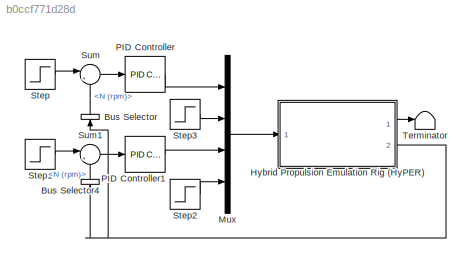
MODEL slx_b0ccf771d28d
KIND model
CONFIG AbsTol = auto
CONFIG EnableMultiTasking = off
CONFIG FixedStep = 0.02
CONFIG MaxStep = auto
CONFIG MinStep = auto
CONFIG RelTol = 1e-3
CONFIG SampleTimeConstraint = Unconstrained
CONFIG SolverName = FixedStepAuto
CONFIG StartTime = 0.0
CONFIG StopTime = 20
BLOCK [BusSelector] Bus Selector
  NameLocation = right
  OutputSignals = S_LS.N (rpm)
  Ports = [1, 1]
BLOCK [BusSelector] Bus Selector4
  NameLocation = right
  OutputSignals = S_HS.N (rpm)
  Ports = [1, 1]
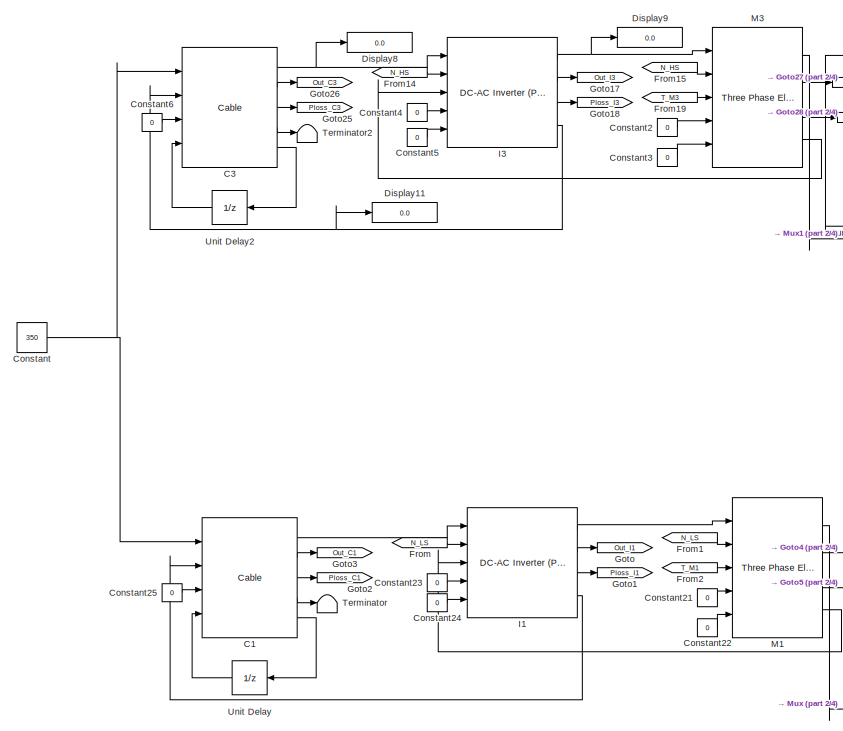
[diagram: Hybrid Propulsion Emulation Rig (HyPER) - part 1/4, middle left region]
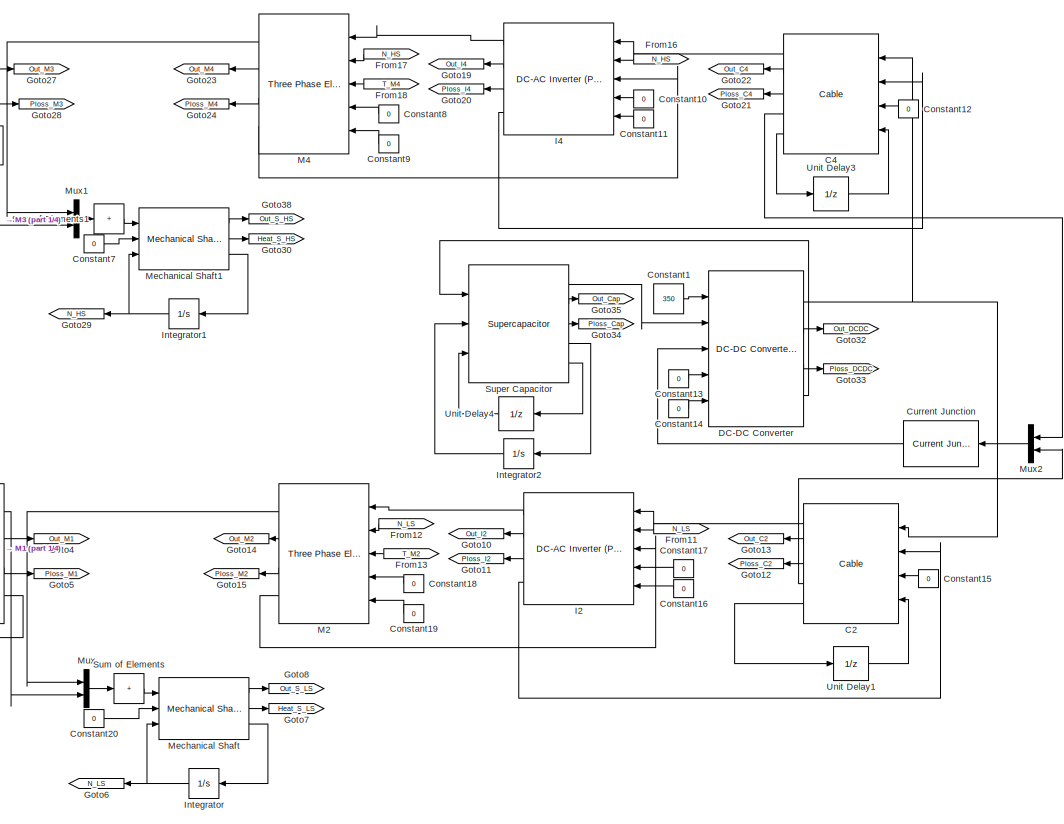
[diagram: Hybrid Propulsion Emulation Rig (HyPER) - part 2/4, central region]
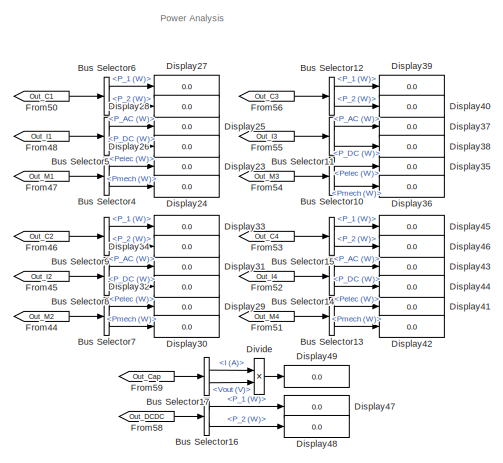
[diagram: Hybrid Propulsion Emulation Rig (HyPER) - part 3/4, middle right region]
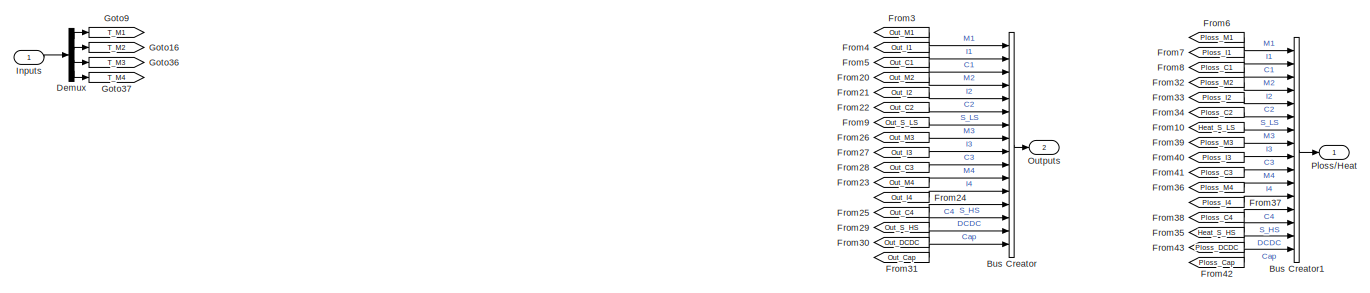
[diagram: Hybrid Propulsion Emulation Rig (HyPER) - part 4/4, bottom center region]
BLOCK [SubSystem] Hybrid Propulsion Emulation Rig (HyPER)
  Ports = [1, 2]
  RequestExecContextInheritance = off
BLOCK [BusCreator] Hybrid Propulsion Emulation Rig (HyPER)/Bus Creator
  DisplayOption = bar
  InheritFromInputs = on
  Inputs = 16
  Ports = [16, 1]
BLOCK [BusCreator] Hybrid Propulsion Emulation Rig (HyPER)/Bus Creator1
  DisplayOption = bar
  InheritFromInputs = on
  Inputs = 16
  Ports = [16, 1]
BLOCK [BusSelector] Hybrid Propulsion Emulation Rig (HyPER)/Bus Selector10
  OutputSignals = Pelec (W),Pmech (W)
  Ports = [1, 2]
BLOCK [BusSelector] Hybrid Propulsion Emulation Rig (HyPER)/Bus Selector11
  OutputSignals = P_AC (W),P_DC (W)
  Ports = [1, 2]
BLOCK [BusSelector] Hybrid Propulsion Emulation Rig (HyPER)/Bus Selector12
  OutputSignals = P_1 (W),P_2 (W)
  Ports = [1, 2]
BLOCK [BusSelector] Hybrid Propulsion Emulation Rig (HyPER)/Bus Selector13
  OutputSignals = Pelec (W),Pmech (W)
  Ports = [1, 2]
BLOCK [BusSelector] Hybrid Propulsion Emulation Rig (HyPER)/Bus Selector14
  OutputSignals = P_AC (W),P_DC (W)
  Ports = [1, 2]
BLOCK [BusSelector] Hybrid Propulsion Emulation Rig (HyPER)/Bus Selector15
  OutputSignals = P_1 (W),P_2 (W)
  Ports = [1, 2]
BLOCK [BusSelector] Hybrid Propulsion Emulation Rig (HyPER)/Bus Selector16
  OutputSignals = P_1 (W),P_2 (W)
  Ports = [1, 2]
BLOCK [BusSelector] Hybrid Propulsion Emulation Rig (HyPER)/Bus Selector17
  OutputSignals = I (A),Vout (V)
  Ports = [1, 2]
BLOCK [BusSelector] Hybrid Propulsion Emulation Rig (HyPER)/Bus Selector4
  OutputSignals = Pelec (W),Pmech (W)
  Ports = [1, 2]
BLOCK [BusSelector] Hybrid Propulsion Emulation Rig (HyPER)/Bus Selector5
  OutputSignals = P_AC (W),P_DC (W)
  Ports = [1, 2]
BLOCK [BusSelector] Hybrid Propulsion Emulation Rig (HyPER)/Bus Selector6
  OutputSignals = P_1 (W),P_2 (W)
  Ports = [1, 2]
BLOCK [BusSelector] Hybrid Propulsion Emulation Rig (HyPER)/Bus Selector7
  OutputSignals = Pelec (W),Pmech (W)
  Ports = [1, 2]
BLOCK [BusSelector] Hybrid Propulsion Emulation Rig (HyPER)/Bus Selector8
  OutputSignals = P_AC (W),P_DC (W)
  Ports = [1, 2]
BLOCK [BusSelector] Hybrid Propulsion Emulation Rig (HyPER)/Bus Selector9
  OutputSignals = P_1 (W),P_2 (W)
  Ports = [1, 2]
BLOCK [Reference] Hybrid Propulsion Emulation Rig (HyPER)/C1  REF=Lib_EMTAT/Components/Power Flow/Cable
  AttributesFormatString = Cable\nVersion: %<LibraryVersion>
  Ports = [4, 5]
  SourceBlock = Lib_EMTAT/Components/Power Flow/Cable
  SourceProductName = EMTAT
  SourceType = Cable
BLOCK [Reference] Hybrid Propulsion Emulation Rig (HyPER)/C2  REF=Lib_EMTAT/Components/Power Flow/Cable
  AttributesFormatString = Cable\nVersion: %<LibraryVersion>
  Ports = [4, 5]
  SourceBlock = Lib_EMTAT/Components/Power Flow/Cable
  SourceProductName = EMTAT
  SourceType = Cable
BLOCK [Reference] Hybrid Propulsion Emulation Rig (HyPER)/C3  REF=Lib_EMTAT/Components/Power Flow/Cable
  AttributesFormatString = Cable\nVersion: %<LibraryVersion>
  Ports = [4, 5]
  SourceBlock = Lib_EMTAT/Components/Power Flow/Cable
  SourceProductName = EMTAT
  SourceType = Cable
BLOCK [Reference] Hybrid Propulsion Emulation Rig (HyPER)/C4  REF=Lib_EMTAT/Components/Power Flow/Cable
  AttributesFormatString = Cable\nVersion: %<LibraryVersion>
  Ports = [4, 5]
  SourceBlock = Lib_EMTAT/Components/Power Flow/Cable
  SourceProductName = EMTAT
  SourceType = Cable
BLOCK [Constant] Hybrid Propulsion Emulation Rig (HyPER)/Constant
  Value = 350
BLOCK [Constant] Hybrid Propulsion Emulation Rig (HyPER)/Constant1
  Value = 350
BLOCK [Constant] Hybrid Propulsion Emulation Rig (HyPER)/Constant10
  Value = 0
BLOCK [Constant] Hybrid Propulsion Emulation Rig (HyPER)/Constant11
  Value = 0
BLOCK [Constant] Hybrid Propulsion Emulation Rig (HyPER)/Constant12
  Value = 0
BLOCK [Constant] Hybrid Propulsion Emulation Rig (HyPER)/Constant13
  Value = 0
BLOCK [Constant] Hybrid Propulsion Emulation Rig (HyPER)/Constant14
  Value = 0
BLOCK [Constant] Hybrid Propulsion Emulation Rig (HyPER)/Constant15
  Value = 0
BLOCK [Constant] Hybrid Propulsion Emulation Rig (HyPER)/Constant16
  Value = 0
BLOCK [Constant] Hybrid Propulsion Emulation Rig (HyPER)/Constant17
  Value = 0
BLOCK [Constant] Hybrid Propulsion Emulation Rig (HyPER)/Constant18
  Value = 0
BLOCK [Constant] Hybrid Propulsion Emulation Rig (HyPER)/Constant19
  Value = 0
BLOCK [Constant] Hybrid Propulsion Emulation Rig (HyPER)/Constant2
  Value = 0
BLOCK [Constant] Hybrid Propulsion Emulation Rig (HyPER)/Constant20
  Value = 0
BLOCK [Constant] Hybrid Propulsion Emulation Rig (HyPER)/Constant21
  Value = 0
BLOCK [Constant] Hybrid Propulsion Emulation Rig (HyPER)/Constant22
  Value = 0
BLOCK [Constant] Hybrid Propulsion Emulation Rig (HyPER)/Constant23
  Value = 0
BLOCK [Constant] Hybrid Propulsion Emulation Rig (HyPER)/Constant24
  Value = 0
BLOCK [Constant] Hybrid Propulsion Emulation Rig (HyPER)/Constant25
  Value = 0
BLOCK [Constant] Hybrid Propulsion Emulation Rig (HyPER)/Constant3
  Value = 0
BLOCK [Constant] Hybrid Propulsion Emulation Rig (HyPER)/Constant4
  Value = 0
BLOCK [Constant] Hybrid Propulsion Emulation Rig (HyPER)/Constant5
  Value = 0
BLOCK [Constant] Hybrid Propulsion Emulation Rig (HyPER)/Constant6
  Value = 0
BLOCK [Constant] Hybrid Propulsion Emulation Rig (HyPER)/Constant7
  Value = 0
BLOCK [Constant] Hybrid Propulsion Emulation Rig (HyPER)/Constant8
  Value = 0
BLOCK [Constant] Hybrid Propulsion Emulation Rig (HyPER)/Constant9
  Value = 0
BLOCK [Reference] Hybrid Propulsion Emulation Rig (HyPER)/Current Junction  REF=Lib_EMTAT/Components/Power Flow/Current Junction
  AttributesFormatString = Current Junction\nVersion: %<LibraryVersion>
  Ports = [1, 1]
  SourceBlock = Lib_EMTAT/Components/Power Flow/Current Junction
  SourceProductName = EMTAT
  SourceType = Current Junction
BLOCK [Reference] Hybrid Propulsion Emulation Rig (HyPER)/DC-DC Converter  REF=Lib_EMTAT/Components/Power Flow/DC-DC Converter
(Power Loss Map)
(Set Output Voltage)
  AttributesFormatString = DC-DC Converter\nVersion: %<LibraryVersion>
  Ports = [5, 4]
  SourceBlock = Lib_EMTAT/Components/Power Flow/DC-DC Converter\n(Power Loss Map)\n(Set Output Voltage)
  SourceProductName = EMTAT
  SourceType = DC-DC Converter (Power Loss Map) (Set Output Voltage)
BLOCK [Demux] Hybrid Propulsion Emulation Rig (HyPER)/Demux
  Ports = [1, 4]
BLOCK [Display] Hybrid Propulsion Emulation Rig (HyPER)/Display11
  Decimation = 1
  Ports = [1]
BLOCK [Display] Hybrid Propulsion Emulation Rig (HyPER)/Display23
  Decimation = 1
  Ports = [1]
BLOCK [Display] Hybrid Propulsion Emulation Rig (HyPER)/Display24
  Decimation = 1
  Ports = [1]
BLOCK [Display] Hybrid Propulsion Emulation Rig (HyPER)/Display25
  Decimation = 1
  Ports = [1]
BLOCK [Display] Hybrid Propulsion Emulation Rig (HyPER)/Display26
  Decimation = 1
  Ports = [1]
BLOCK [Display] Hybrid Propulsion Emulation Rig (HyPER)/Display27
  Decimation = 1
  Ports = [1]
BLOCK [Display] Hybrid Propulsion Emulation Rig (HyPER)/Display28
  Decimation = 1
  Ports = [1]
BLOCK [Display] Hybrid Propulsion Emulation Rig (HyPER)/Display29
  Decimation = 1
  Ports = [1]
BLOCK [Display] Hybrid Propulsion Emulation Rig (HyPER)/Display30
  Decimation = 1
  Ports = [1]
BLOCK [Display] Hybrid Propulsion Emulation Rig (HyPER)/Display31
  Decimation = 1
  Ports = [1]
BLOCK [Display] Hybrid Propulsion Emulation Rig (HyPER)/Display32
  Decimation = 1
  Ports = [1]
BLOCK [Display] Hybrid Propulsion Emulation Rig (HyPER)/Display33
  Decimation = 1
  Ports = [1]
BLOCK [Display] Hybrid Propulsion Emulation Rig (HyPER)/Display34
  Decimation = 1
  Ports = [1]
BLOCK [Display] Hybrid Propulsion Emulation Rig (HyPER)/Display35
  Decimation = 1
  Ports = [1]
BLOCK [Display] Hybrid Propulsion Emulation Rig (HyPER)/Display36
  Decimation = 1
  Ports = [1]
BLOCK [Display] Hybrid Propulsion Emulation Rig (HyPER)/Display37
  Decimation = 1
  Ports = [1]
BLOCK [Display] Hybrid Propulsion Emulation Rig (HyPER)/Display38
  Decimation = 1
  Ports = [1]
BLOCK [Display] Hybrid Propulsion Emulation Rig (HyPER)/Display39
  Decimation = 1
  Ports = [1]
BLOCK [Display] Hybrid Propulsion Emulation Rig (HyPER)/Display40
  Decimation = 1
  Ports = [1]
BLOCK [Display] Hybrid Propulsion Emulation Rig (HyPER)/Display41
  Decimation = 1
  Ports = [1]
BLOCK [Display] Hybrid Propulsion Emulation Rig (HyPER)/Display42
  Decimation = 1
  Ports = [1]
BLOCK [Display] Hybrid Propulsion Emulation Rig (HyPER)/Display43
  Decimation = 1
  Ports = [1]
BLOCK [Display] Hybrid Propulsion Emulation Rig (HyPER)/Display44
  Decimation = 1
  Ports = [1]
BLOCK [Display] Hybrid Propulsion Emulation Rig (HyPER)/Display45
  Decimation = 1
  Ports = [1]
BLOCK [Display] Hybrid Propulsion Emulation Rig (HyPER)/Display46
  Decimation = 1
  Ports = [1]
BLOCK [Display] Hybrid Propulsion Emulation Rig (HyPER)/Display47
  Decimation = 1
  Ports = [1]
BLOCK [Display] Hybrid Propulsion Emulation Rig (HyPER)/Display48
  Decimation = 1
  Ports = [1]
BLOCK [Display] Hybrid Propulsion Emulation Rig (HyPER)/Display49
  Decimation = 1
  Ports = [1]
BLOCK [Display] Hybrid Propulsion Emulation Rig (HyPER)/Display8
  Decimation = 1
  Ports = [1]
BLOCK [Display] Hybrid Propulsion Emulation Rig (HyPER)/Display9
  Decimation = 1
  Ports = [1]
BLOCK [Product] Hybrid Propulsion Emulation Rig (HyPER)/Divide
  Inputs = **
  Ports = [2, 1]
BLOCK [From] Hybrid Propulsion Emulation Rig (HyPER)/From
  GotoTag = N_LS
BLOCK [From] Hybrid Propulsion Emulation Rig (HyPER)/From1
  GotoTag = N_LS
BLOCK [From] Hybrid Propulsion Emulation Rig (HyPER)/From10
  GotoTag = Heat_S_LS
BLOCK [From] Hybrid Propulsion Emulation Rig (HyPER)/From11
  GotoTag = N_LS
BLOCK [From] Hybrid Propulsion Emulation Rig (HyPER)/From12
  GotoTag = N_LS
BLOCK [From] Hybrid Propulsion Emulation Rig (HyPER)/From13
  GotoTag = T_M2
BLOCK [From] Hybrid Propulsion Emulation Rig (HyPER)/From14
  GotoTag = N_HS
BLOCK [From] Hybrid Propulsion Emulation Rig (HyPER)/From15
  GotoTag = N_HS
BLOCK [From] Hybrid Propulsion Emulation Rig (HyPER)/From16
  GotoTag = N_HS
BLOCK [From] Hybrid Propulsion Emulation Rig (HyPER)/From17
  GotoTag = N_HS
BLOCK [From] Hybrid Propulsion Emulation Rig (HyPER)/From18
  GotoTag = T_M4
BLOCK [From] Hybrid Propulsion Emulation Rig (HyPER)/From19
  GotoTag = T_M3
BLOCK [From] Hybrid Propulsion Emulation Rig (HyPER)/From2
  GotoTag = T_M1
BLOCK [From] Hybrid Propulsion Emulation Rig (HyPER)/From20
  GotoTag = Out_M2
BLOCK [From] Hybrid Propulsion Emulation Rig (HyPER)/From21
  GotoTag = Out_I2
BLOCK [From] Hybrid Propulsion Emulation Rig (HyPER)/From22
  GotoTag = Out_C2
BLOCK [From] Hybrid Propulsion Emulation Rig (HyPER)/From23
  GotoTag = Out_M4
BLOCK [From] Hybrid Propulsion Emulation Rig (HyPER)/From24
  GotoTag = Out_I4
BLOCK [From] Hybrid Propulsion Emulation Rig (HyPER)/From25
  GotoTag = Out_C4
BLOCK [From] Hybrid Propulsion Emulation Rig (HyPER)/From26
  GotoTag = Out_M3
BLOCK [From] Hybrid Propulsion Emulation Rig (HyPER)/From27
  GotoTag = Out_I3
BLOCK [From] Hybrid Propulsion Emulation Rig (HyPER)/From28
  GotoTag = Out_C3
BLOCK [From] Hybrid Propulsion Emulation Rig (HyPER)/From29
  GotoTag = Out_S_HS
BLOCK [From] Hybrid Propulsion Emulation Rig (HyPER)/From3
  GotoTag = Out_M1
BLOCK [From] Hybrid Propulsion Emulation Rig (HyPER)/From30
  GotoTag = Out_DCDC
BLOCK [From] Hybrid Propulsion Emulation Rig (HyPER)/From31
  GotoTag = Out_Cap
BLOCK [From] Hybrid Propulsion Emulation Rig (HyPER)/From32
  GotoTag = Ploss_M2
BLOCK [From] Hybrid Propulsion Emulation Rig (HyPER)/From33
  GotoTag = Ploss_I2
BLOCK [From] Hybrid Propulsion Emulation Rig (HyPER)/From34
  GotoTag = Ploss_C2
BLOCK [From] Hybrid Propulsion Emulation Rig (HyPER)/From35
  GotoTag = Heat_S_HS
BLOCK [From] Hybrid Propulsion Emulation Rig (HyPER)/From36
  GotoTag = Ploss_M4
BLOCK [From] Hybrid Propulsion Emulation Rig (HyPER)/From37
  GotoTag = Ploss_I4
BLOCK [From] Hybrid Propulsion Emulation Rig (HyPER)/From38
  GotoTag = Ploss_C4
BLOCK [From] Hybrid Propulsion Emulation Rig (HyPER)/From39
  GotoTag = Ploss_M3
BLOCK [From] Hybrid Propulsion Emulation Rig (HyPER)/From4
  GotoTag = Out_I1
BLOCK [From] Hybrid Propulsion Emulation Rig (HyPER)/From40
  GotoTag = Ploss_I3
BLOCK [From] Hybrid Propulsion Emulation Rig (HyPER)/From41
  GotoTag = Ploss_C3
BLOCK [From] Hybrid Propulsion Emulation Rig (HyPER)/From42
  GotoTag = Ploss_Cap
BLOCK [From] Hybrid Propulsion Emulation Rig (HyPER)/From43
  GotoTag = Ploss_DCDC
BLOCK [From] Hybrid Propulsion Emulation Rig (HyPER)/From44
  GotoTag = Out_M2
BLOCK [From] Hybrid Propulsion Emulation Rig (HyPER)/From45
  GotoTag = Out_I2
BLOCK [From] Hybrid Propulsion Emulation Rig (HyPER)/From46
  GotoTag = Out_C2
BLOCK [From] Hybrid Propulsion Emulation Rig (HyPER)/From47
  GotoTag = Out_M1
BLOCK [From] Hybrid Propulsion Emulation Rig (HyPER)/From48
  GotoTag = Out_I1
BLOCK [From] Hybrid Propulsion Emulation Rig (HyPER)/From5
  GotoTag = Out_C1
BLOCK [From] Hybrid Propulsion Emulation Rig (HyPER)/From50
  GotoTag = Out_C1
BLOCK [From] Hybrid Propulsion Emulation Rig (HyPER)/From51
  GotoTag = Out_M4
BLOCK [From] Hybrid Propulsion Emulation Rig (HyPER)/From52
  GotoTag = Out_I4
BLOCK [From] Hybrid Propulsion Emulation Rig (HyPER)/From53
  GotoTag = Out_C4
BLOCK [From] Hybrid Propulsion Emulation Rig (HyPER)/From54
  GotoTag = Out_M3
BLOCK [From] Hybrid Propulsion Emulation Rig (HyPER)/From55
  GotoTag = Out_I3
BLOCK [From] Hybrid Propulsion Emulation Rig (HyPER)/From56
  GotoTag = Out_C3
BLOCK [From] Hybrid Propulsion Emulation Rig (HyPER)/From58
  GotoTag = Out_DCDC
BLOCK [From] Hybrid Propulsion Emulation Rig (HyPER)/From59
  GotoTag = Out_Cap
BLOCK [From] Hybrid Propulsion Emulation Rig (HyPER)/From6
  GotoTag = Ploss_M1
BLOCK [From] Hybrid Propulsion Emulation Rig (HyPER)/From7
  GotoTag = Ploss_I1
BLOCK [From] Hybrid Propulsion Emulation Rig (HyPER)/From8
  GotoTag = Ploss_C1
BLOCK [From] Hybrid Propulsion Emulation Rig (HyPER)/From9
  GotoTag = Out_S_LS
BLOCK [Goto] Hybrid Propulsion Emulation Rig (HyPER)/Goto
  GotoTag = Out_I1
BLOCK [Goto] Hybrid Propulsion Emulation Rig (HyPER)/Goto1
  GotoTag = Ploss_I1
BLOCK [Goto] Hybrid Propulsion Emulation Rig (HyPER)/Goto10
  GotoTag = Out_I2
BLOCK [Goto] Hybrid Propulsion Emulation Rig (HyPER)/Goto11
  GotoTag = Ploss_I2
BLOCK [Goto] Hybrid Propulsion Emulation Rig (HyPER)/Goto12
  GotoTag = Ploss_C2
BLOCK [Goto] Hybrid Propulsion Emulation Rig (HyPER)/Goto13
  GotoTag = Out_C2
BLOCK [Goto] Hybrid Propulsion Emulation Rig (HyPER)/Goto14
  GotoTag = Out_M2
BLOCK [Goto] Hybrid Propulsion Emulation Rig (HyPER)/Goto15
  GotoTag = Ploss_M2
BLOCK [Goto] Hybrid Propulsion Emulation Rig (HyPER)/Goto16
  GotoTag = T_M2
BLOCK [Goto] Hybrid Propulsion Emulation Rig (HyPER)/Goto17
  GotoTag = Out_I3
BLOCK [Goto] Hybrid Propulsion Emulation Rig (HyPER)/Goto18
  GotoTag = Ploss_I3
BLOCK [Goto] Hybrid Propulsion Emulation Rig (HyPER)/Goto19
  GotoTag = Out_I4
BLOCK [Goto] Hybrid Propulsion Emulation Rig (HyPER)/Goto2
  GotoTag = Ploss_C1
BLOCK [Goto] Hybrid Propulsion Emulation Rig (HyPER)/Goto20
  GotoTag = Ploss_I4
BLOCK [Goto] Hybrid Propulsion Emulation Rig (HyPER)/Goto21
  GotoTag = Ploss_C4
BLOCK [Goto] Hybrid Propulsion Emulation Rig (HyPER)/Goto22
  GotoTag = Out_C4
BLOCK [Goto] Hybrid Propulsion Emulation Rig (HyPER)/Goto23
  GotoTag = Out_M4
BLOCK [Goto] Hybrid Propulsion Emulation Rig (HyPER)/Goto24
  GotoTag = Ploss_M4
BLOCK [Goto] Hybrid Propulsion Emulation Rig (HyPER)/Goto25
  GotoTag = Ploss_C3
BLOCK [Goto] Hybrid Propulsion Emulation Rig (HyPER)/Goto26
  GotoTag = Out_C3
BLOCK [Goto] Hybrid Propulsion Emulation Rig (HyPER)/Goto27
  GotoTag = Out_M3
BLOCK [Goto] Hybrid Propulsion Emulation Rig (HyPER)/Goto28
  GotoTag = Ploss_M3
BLOCK [Goto] Hybrid Propulsion Emulation Rig (HyPER)/Goto29
  GotoTag = N_HS
BLOCK [Goto] Hybrid Propulsion Emulation Rig (HyPER)/Goto3
  GotoTag = Out_C1
BLOCK [Goto] Hybrid Propulsion Emulation Rig (HyPER)/Goto30
  GotoTag = Heat_S_HS
BLOCK [Goto] Hybrid Propulsion Emulation Rig (HyPER)/Goto32
  GotoTag = Out_DCDC
BLOCK [Goto] Hybrid Propulsion Emulation Rig (HyPER)/Goto33
  GotoTag = Ploss_DCDC
BLOCK [Goto] Hybrid Propulsion Emulation Rig (HyPER)/Goto34
  GotoTag = Ploss_Cap
BLOCK [Goto] Hybrid Propulsion Emulation Rig (HyPER)/Goto35
  GotoTag = Out_Cap
BLOCK [Goto] Hybrid Propulsion Emulation Rig (HyPER)/Goto36
  GotoTag = T_M3
BLOCK [Goto] Hybrid Propulsion Emulation Rig (HyPER)/Goto37
  GotoTag = T_M4
BLOCK [Goto] Hybrid Propulsion Emulation Rig (HyPER)/Goto38
  GotoTag = Out_S_HS
BLOCK [Goto] Hybrid Propulsion Emulation Rig (HyPER)/Goto4
  GotoTag = Out_M1
BLOCK [Goto] Hybrid Propulsion Emulation Rig (HyPER)/Goto5
  GotoTag = Ploss_M1
BLOCK [Goto] Hybrid Propulsion Emulation Rig (HyPER)/Goto6
  GotoTag = N_LS
BLOCK [Goto] Hybrid Propulsion Emulation Rig (HyPER)/Goto7
  GotoTag = Heat_S_LS
BLOCK [Goto] Hybrid Propulsion Emulation Rig (HyPER)/Goto8
  GotoTag = Out_S_LS
BLOCK [Goto] Hybrid Propulsion Emulation Rig (HyPER)/Goto9
  GotoTag = T_M1
BLOCK [Reference] Hybrid Propulsion Emulation Rig (HyPER)/I1  REF=Lib_EMTAT/Components/Power Flow/DC-AC Inverter (Power Loss Map)
  AttributesFormatString = Inverter/Rectifier (Sink)\nVersion: %<LibraryVersion>
  Ports = [5, 4]
  SourceBlock = Lib_EMTAT/Components/Power Flow/DC-AC Inverter (Power Loss Map)
  SourceProductName = EMTAT
  SourceType = DC-AC Inverter (Power Loss Map)
BLOCK [Reference] Hybrid Propulsion Emulation Rig (HyPER)/I2  REF=Lib_EMTAT/Components/Power Flow/DC-AC Inverter (Power Loss Map)
  AttributesFormatString = Inverter/Rectifier (Sink)\nVersion: %<LibraryVersion>
  Ports = [5, 4]
  SourceBlock = Lib_EMTAT/Components/Power Flow/DC-AC Inverter (Power Loss Map)
  SourceProductName = EMTAT
  SourceType = DC-AC Inverter (Power Loss Map)
BLOCK [Reference] Hybrid Propulsion Emulation Rig (HyPER)/I3  REF=Lib_EMTAT/Components/Power Flow/DC-AC Inverter (Power Loss Map)
  AttributesFormatString = Inverter/Rectifier (Sink)\nVersion: %<LibraryVersion>
  Ports = [5, 4]
  SourceBlock = Lib_EMTAT/Components/Power Flow/DC-AC Inverter (Power Loss Map)
  SourceProductName = EMTAT
  SourceType = DC-AC Inverter (Power Loss Map)
BLOCK [Reference] Hybrid Propulsion Emulation Rig (HyPER)/I4  REF=Lib_EMTAT/Components/Power Flow/DC-AC Inverter (Power Loss Map)
  AttributesFormatString = Inverter/Rectifier (Sink)\nVersion: %<LibraryVersion>
  Ports = [5, 4]
  SourceBlock = Lib_EMTAT/Components/Power Flow/DC-AC Inverter (Power Loss Map)
  SourceProductName = EMTAT
  SourceType = DC-AC Inverter (Power Loss Map)
BLOCK [Inport] Hybrid Propulsion Emulation Rig (HyPER)/Inputs
BLOCK [Integrator] Hybrid Propulsion Emulation Rig (HyPER)/Integrator
  Ports = [1, 1]
BLOCK [Integrator] Hybrid Propulsion Emulation Rig (HyPER)/Integrator1
  Ports = [1, 1]
BLOCK [Integrator] Hybrid Propulsion Emulation Rig (HyPER)/Integrator2
  InitialCondition = 150
  Ports = [1, 1]
BLOCK [Reference] Hybrid Propulsion Emulation Rig (HyPER)/M1  REF=Lib_EMTAT/Components/Power Flow/Three Phase Electric Machine
(Sink)
  AttributesFormatString = Motor/Generator (Sink)\nVersion: %<LibraryVersion>
  Ports = [5, 4]
  SourceBlock = Lib_EMTAT/Components/Power Flow/Three Phase Electric Machine\n(Sink)
  SourceProductName = EMTAT
  SourceType = Three Phase Electric Machine (Sink)
BLOCK [Reference] Hybrid Propulsion Emulation Rig (HyPER)/M2  REF=Lib_EMTAT/Components/Power Flow/Three Phase Electric Machine
(Sink)
  AttributesFormatString = Motor/Generator (Sink)\nVersion: %<LibraryVersion>
  Ports = [5, 4]
  SourceBlock = Lib_EMTAT/Components/Power Flow/Three Phase Electric Machine\n(Sink)
  SourceProductName = EMTAT
  SourceType = Three Phase Electric Machine (Sink)
BLOCK [Reference] Hybrid Propulsion Emulation Rig (HyPER)/M3  REF=Lib_EMTAT/Components/Power Flow/Three Phase Electric Machine
(Sink)
  AttributesFormatString = Motor/Generator (Sink)\nVersion: %<LibraryVersion>
  Ports = [5, 4]
  SourceBlock = Lib_EMTAT/Components/Power Flow/Three Phase Electric Machine\n(Sink)
  SourceProductName = EMTAT
  SourceType = Three Phase Electric Machine (Sink)
BLOCK [Reference] Hybrid Propulsion Emulation Rig (HyPER)/M4  REF=Lib_EMTAT/Components/Power Flow/Three Phase Electric Machine
(Sink)
  AttributesFormatString = Motor/Generator (Sink)\nVersion: %<LibraryVersion>
  Ports = [5, 4]
  SourceBlock = Lib_EMTAT/Components/Power Flow/Three Phase Electric Machine\n(Sink)
  SourceProductName = EMTAT
  SourceType = Three Phase Electric Machine (Sink)
BLOCK [Reference] Hybrid Propulsion Emulation Rig (HyPER)/Mechanical Shaft  REF=Lib_EMTAT/Components/Power Flow/Mechanical Shaft
  AttributesFormatString = Mechanical Shaft\nVersion: %<LibraryVersion>
  Ports = [3, 3]
  SourceBlock = Lib_EMTAT/Components/Power Flow/Mechanical Shaft
  SourceProductName = EMTAT
  SourceType = Mechanical Shaft
BLOCK [Reference] Hybrid Propulsion Emulation Rig (HyPER)/Mechanical Shaft1  REF=Lib_EMTAT/Components/Power Flow/Mechanical Shaft
  AttributesFormatString = Mechanical Shaft\nVersion: %<LibraryVersion>
  Ports = [3, 3]
  SourceBlock = Lib_EMTAT/Components/Power Flow/Mechanical Shaft
  SourceProductName = EMTAT
  SourceType = Mechanical Shaft
BLOCK [Mux] Hybrid Propulsion Emulation Rig (HyPER)/Mux
  DisplayOption = bar
  Inputs = 2
  Ports = [2, 1]
BLOCK [Mux] Hybrid Propulsion Emulation Rig (HyPER)/Mux1
  DisplayOption = bar
  Inputs = 2
  Ports = [2, 1]
BLOCK [Mux] Hybrid Propulsion Emulation Rig (HyPER)/Mux2
  DisplayOption = bar
  Inputs = 2
  Ports = [2, 1]
BLOCK [Outport] Hybrid Propulsion Emulation Rig (HyPER)/Outputs
  Port = 2
BLOCK [Outport] Hybrid Propulsion Emulation Rig (HyPER)/Ploss//Heat
BLOCK [Sum] Hybrid Propulsion Emulation Rig (HyPER)/Sum of Elements
  IconShape = rectangular
  Inputs = +
  Ports = [1, 1]
BLOCK [Sum] Hybrid Propulsion Emulation Rig (HyPER)/Sum of Elements1
  IconShape = rectangular
  Inputs = +
  Ports = [1, 1]
BLOCK [Reference] Hybrid Propulsion Emulation Rig (HyPER)/Super Capacitor  REF=Lib_EMTAT/Components/Power Flow/Supercapacitor
  AttributesFormatString = Super Capacitor\nVersion: %<LibraryVersion>
  Ports = [3, 5]
  SourceBlock = Lib_EMTAT/Components/Power Flow/Supercapacitor
  SourceProductName = EMTAT
  SourceType = Supercapacitor
BLOCK [Terminator] Hybrid Propulsion Emulation Rig (HyPER)/Terminator
BLOCK [Terminator] Hybrid Propulsion Emulation Rig (HyPER)/Terminator2
BLOCK [UnitDelay] Hybrid Propulsion Emulation Rig (HyPER)/Unit Delay
  HasFrameUpgradeWarning = on
  SampleTime = -1
BLOCK [UnitDelay] Hybrid Propulsion Emulation Rig (HyPER)/Unit Delay1
  HasFrameUpgradeWarning = on
  SampleTime = -1
BLOCK [UnitDelay] Hybrid Propulsion Emulation Rig (HyPER)/Unit Delay2
  HasFrameUpgradeWarning = on
  SampleTime = -1
BLOCK [UnitDelay] Hybrid Propulsion Emulation Rig (HyPER)/Unit Delay3
  HasFrameUpgradeWarning = on
  SampleTime = -1
BLOCK [UnitDelay] Hybrid Propulsion Emulation Rig (HyPER)/Unit Delay4
  HasFrameUpgradeWarning = on
  SampleTime = -1
BLOCK [Mux] Mux
  DisplayOption = bar
  Ports = [4, 1]
BLOCK [Reference] PID Controller  REF=slpidlib/PID Controller
  Ports = [1, 1]
  SourceBlock = slpidlib/PID Controller
  SourceProductBaseCode = SL
  SourceType = PID 1dof
BLOCK [Reference] PID Controller1  REF=slpidlib/PID Controller
  Ports = [1, 1]
  SourceBlock = slpidlib/PID Controller
  SourceProductBaseCode = SL
  SourceType = PID 1dof
BLOCK [Step] Step
  After = 4000
  SampleTime = 0
  Time = 2
BLOCK [Step] Step1
  After = 4000
  SampleTime = 0
BLOCK [Step] Step2
  After = 50
  SampleTime = 0
  Time = 10
BLOCK [Step] Step3
  After = -50
  SampleTime = 0
  Time = 15
BLOCK [Sum] Sum
  Inputs = |+-
  Ports = [2, 1]
BLOCK [Sum] Sum1
  Inputs = |+-
  Ports = [2, 1]
BLOCK [Terminator] Terminator
ANNOTATION Hybrid Propulsion Emulation Rig (HyPER): Power Analysis
LINE Bus Selector4:1 -> Sum1:2
LINE Bus Selector:1 -> Sum:2
LINE Hybrid Propulsion Emulation Rig (HyPER)/Bus Creator1:1 -> Hybrid Propulsion Emulation Rig (HyPER)/Ploss//Heat:1
LINE Hybrid Propulsion Emulation Rig (HyPER)/Bus Creator:1 -> Hybrid Propulsion Emulation Rig (HyPER)/Outputs:1
LINE Hybrid Propulsion Emulation Rig (HyPER)/Bus Selector10:1 -> Hybrid Propulsion Emulation Rig (HyPER)/Display35:1
LINE Hybrid Propulsion Emulation Rig (HyPER)/Bus Selector10:2 -> Hybrid Propulsion Emulation Rig (HyPER)/Display36:1
LINE Hybrid Propulsion Emulation Rig (HyPER)/Bus Selector11:1 -> Hybrid Propulsion Emulation Rig (HyPER)/Display37:1
LINE Hybrid Propulsion Emulation Rig (HyPER)/Bus Selector11:2 -> Hybrid Propulsion Emulation Rig (HyPER)/Display38:1
LINE Hybrid Propulsion Emulation Rig (HyPER)/Bus Selector12:1 -> Hybrid Propulsion Emulation Rig (HyPER)/Display39:1
LINE Hybrid Propulsion Emulation Rig (HyPER)/Bus Selector12:2 -> Hybrid Propulsion Emulation Rig (HyPER)/Display40:1
LINE Hybrid Propulsion Emulation Rig (HyPER)/Bus Selector13:1 -> Hybrid Propulsion Emulation Rig (HyPER)/Display41:1
LINE Hybrid Propulsion Emulation Rig (HyPER)/Bus Selector13:2 -> Hybrid Propulsion Emulation Rig (HyPER)/Display42:1
LINE Hybrid Propulsion Emulation Rig (HyPER)/Bus Selector14:1 -> Hybrid Propulsion Emulation Rig (HyPER)/Display43:1
LINE Hybrid Propulsion Emulation Rig (HyPER)/Bus Selector14:2 -> Hybrid Propulsion Emulation Rig (HyPER)/Display44:1
LINE Hybrid Propulsion Emulation Rig (HyPER)/Bus Selector15:1 -> Hybrid Propulsion Emulation Rig (HyPER)/Display45:1
LINE Hybrid Propulsion Emulation Rig (HyPER)/Bus Selector15:2 -> Hybrid Propulsion Emulation Rig (HyPER)/Display46:1
LINE Hybrid Propulsion Emulation Rig (HyPER)/Bus Selector16:1 -> Hybrid Propulsion Emulation Rig (HyPER)/Display47:1
LINE Hybrid Propulsion Emulation Rig (HyPER)/Bus Selector16:2 -> Hybrid Propulsion Emulation Rig (HyPER)/Display48:1
LINE Hybrid Propulsion Emulation Rig (HyPER)/Bus Selector17:1 -> Hybrid Propulsion Emulation Rig (HyPER)/Divide:1
LINE Hybrid Propulsion Emulation Rig (HyPER)/Bus Selector17:2 -> Hybrid Propulsion Emulation Rig (HyPER)/Divide:2
LINE Hybrid Propulsion Emulation Rig (HyPER)/Bus Selector4:1 -> Hybrid Propulsion Emulation Rig (HyPER)/Display23:1
LINE Hybrid Propulsion Emulation Rig (HyPER)/Bus Selector4:2 -> Hybrid Propulsion Emulation Rig (HyPER)/Display24:1
LINE Hybrid Propulsion Emulation Rig (HyPER)/Bus Selector5:1 -> Hybrid Propulsion Emulation Rig (HyPER)/Display25:1
LINE Hybrid Propulsion Emulation Rig (HyPER)/Bus Selector5:2 -> Hybrid Propulsion Emulation Rig (HyPER)/Display26:1
LINE Hybrid Propulsion Emulation Rig (HyPER)/Bus Selector6:1 -> Hybrid Propulsion Emulation Rig (HyPER)/Display27:1
LINE Hybrid Propulsion Emulation Rig (HyPER)/Bus Selector6:2 -> Hybrid Propulsion Emulation Rig (HyPER)/Display28:1
LINE Hybrid Propulsion Emulation Rig (HyPER)/Bus Selector7:1 -> Hybrid Propulsion Emulation Rig (HyPER)/Display29:1
LINE Hybrid Propulsion Emulation Rig (HyPER)/Bus Selector7:2 -> Hybrid Propulsion Emulation Rig (HyPER)/Display30:1
LINE Hybrid Propulsion Emulation Rig (HyPER)/Bus Selector8:1 -> Hybrid Propulsion Emulation Rig (HyPER)/Display31:1
LINE Hybrid Propulsion Emulation Rig (HyPER)/Bus Selector8:2 -> Hybrid Propulsion Emulation Rig (HyPER)/Display32:1
LINE Hybrid Propulsion Emulation Rig (HyPER)/Bus Selector9:1 -> Hybrid Propulsion Emulation Rig (HyPER)/Display33:1
LINE Hybrid Propulsion Emulation Rig (HyPER)/Bus Selector9:2 -> Hybrid Propulsion Emulation Rig (HyPER)/Display34:1
LINE Hybrid Propulsion Emulation Rig (HyPER)/C1:1 -> Hybrid Propulsion Emulation Rig (HyPER)/I1:1
LINE Hybrid Propulsion Emulation Rig (HyPER)/C1:2 -> Hybrid Propulsion Emulation Rig (HyPER)/Goto3:1
LINE Hybrid Propulsion Emulation Rig (HyPER)/C1:3 -> Hybrid Propulsion Emulation Rig (HyPER)/Goto2:1
LINE Hybrid Propulsion Emulation Rig (HyPER)/C1:4 -> Hybrid Propulsion Emulation Rig (HyPER)/Terminator:1
LINE Hybrid Propulsion Emulation Rig (HyPER)/C1:5 -> Hybrid Propulsion Emulation Rig (HyPER)/Unit Delay:1
LINE Hybrid Propulsion Emulation Rig (HyPER)/C2:1 -> Hybrid Propulsion Emulation Rig (HyPER)/I2:1
LINE Hybrid Propulsion Emulation Rig (HyPER)/C2:2 -> Hybrid Propulsion Emulation Rig (HyPER)/Goto13:1
LINE Hybrid Propulsion Emulation Rig (HyPER)/C2:3 -> Hybrid Propulsion Emulation Rig (HyPER)/Goto12:1
LINE Hybrid Propulsion Emulation Rig (HyPER)/C2:4 -> Hybrid Propulsion Emulation Rig (HyPER)/Mux2:2
LINE Hybrid Propulsion Emulation Rig (HyPER)/C2:5 -> Hybrid Propulsion Emulation Rig (HyPER)/Unit Delay1:1
NET Hybrid Propulsion Emulation Rig (HyPER)/C3:1 -> Hybrid Propulsion Emulation Rig (HyPER)/Display8:1, Hybrid Propulsion Emulation Rig (HyPER)/I3:1
LINE Hybrid Propulsion Emulation Rig (HyPER)/C3:2 -> Hybrid Propulsion Emulation Rig (HyPER)/Goto26:1
LINE Hybrid Propulsion Emulation Rig (HyPER)/C3:3 -> Hybrid Propulsion Emulation Rig (HyPER)/Goto25:1
LINE Hybrid Propulsion Emulation Rig (HyPER)/C3:4 -> Hybrid Propulsion Emulation Rig (HyPER)/Terminator2:1
LINE Hybrid Propulsion Emulation Rig (HyPER)/C3:5 -> Hybrid Propulsion Emulation Rig (HyPER)/Unit Delay2:1
LINE Hybrid Propulsion Emulation Rig (HyPER)/C4:1 -> Hybrid Propulsion Emulation Rig (HyPER)/I4:1
LINE Hybrid Propulsion Emulation Rig (HyPER)/C4:2 -> Hybrid Propulsion Emulation Rig (HyPER)/Goto22:1
LINE Hybrid Propulsion Emulation Rig (HyPER)/C4:3 -> Hybrid Propulsion Emulation Rig (HyPER)/Goto21:1
LINE Hybrid Propulsion Emulation Rig (HyPER)/C4:4 -> Hybrid Propulsion Emulation Rig (HyPER)/Mux2:1
LINE Hybrid Propulsion Emulation Rig (HyPER)/C4:5 -> Hybrid Propulsion Emulation Rig (HyPER)/Unit Delay3:1
LINE Hybrid Propulsion Emulation Rig (HyPER)/Constant10:1 -> Hybrid Propulsion Emulation Rig (HyPER)/I4:4
LINE Hybrid Propulsion Emulation Rig (HyPER)/Constant11:1 -> Hybrid Propulsion Emulation Rig (HyPER)/I4:5
LINE Hybrid Propulsion Emulation Rig (HyPER)/Constant12:1 -> Hybrid Propulsion Emulation Rig (HyPER)/C4:3
LINE Hybrid Propulsion Emulation Rig (HyPER)/Constant13:1 -> Hybrid Propulsion Emulation Rig (HyPER)/DC-DC Converter:4
LINE Hybrid Propulsion Emulation Rig (HyPER)/Constant14:1 -> Hybrid Propulsion Emulation Rig (HyPER)/DC-DC Converter:5
LINE Hybrid Propulsion Emulation Rig (HyPER)/Constant15:1 -> Hybrid Propulsion Emulation Rig (HyPER)/C2:3
LINE Hybrid Propulsion Emulation Rig (HyPER)/Constant16:1 -> Hybrid Propulsion Emulation Rig (HyPER)/I2:5
LINE Hybrid Propulsion Emulation Rig (HyPER)/Constant17:1 -> Hybrid Propulsion Emulation Rig (HyPER)/I2:4
LINE Hybrid Propulsion Emulation Rig (HyPER)/Constant18:1 -> Hybrid Propulsion Emulation Rig (HyPER)/M2:4
LINE Hybrid Propulsion Emulation Rig (HyPER)/Constant19:1 -> Hybrid Propulsion Emulation Rig (HyPER)/M2:5
LINE Hybrid Propulsion Emulation Rig (HyPER)/Constant1:1 -> Hybrid Propulsion Emulation Rig (HyPER)/DC-DC Converter:1
LINE Hybrid Propulsion Emulation Rig (HyPER)/Constant20:1 -> Hybrid Propulsion Emulation Rig (HyPER)/Mechanical Shaft:2
LINE Hybrid Propulsion Emulation Rig (HyPER)/Constant21:1 -> Hybrid Propulsion Emulation Rig (HyPER)/M1:4
LINE Hybrid Propulsion Emulation Rig (HyPER)/Constant22:1 -> Hybrid Propulsion Emulation Rig (HyPER)/M1:5
LINE Hybrid Propulsion Emulation Rig (HyPER)/Constant23:1 -> Hybrid Propulsion Emulation Rig (HyPER)/I1:4
LINE Hybrid Propulsion Emulation Rig (HyPER)/Constant24:1 -> Hybrid Propulsion Emulation Rig (HyPER)/I1:5
LINE Hybrid Propulsion Emulation Rig (HyPER)/Constant25:1 -> Hybrid Propulsion Emulation Rig (HyPER)/C1:3
LINE Hybrid Propulsion Emulation Rig (HyPER)/Constant2:1 -> Hybrid Propulsion Emulation Rig (HyPER)/M3:4
LINE Hybrid Propulsion Emulation Rig (HyPER)/Constant3:1 -> Hybrid Propulsion Emulation Rig (HyPER)/M3:5
LINE Hybrid Propulsion Emulation Rig (HyPER)/Constant4:1 -> Hybrid Propulsion Emulation Rig (HyPER)/I3:4
LINE Hybrid Propulsion Emulation Rig (HyPER)/Constant5:1 -> Hybrid Propulsion Emulation Rig (HyPER)/I3:5
LINE Hybrid Propulsion Emulation Rig (HyPER)/Constant6:1 -> Hybrid Propulsion Emulation Rig (HyPER)/C3:3
LINE Hybrid Propulsion Emulation Rig (HyPER)/Constant7:1 -> Hybrid Propulsion Emulation Rig (HyPER)/Mechanical Shaft1:2
LINE Hybrid Propulsion Emulation Rig (HyPER)/Constant8:1 -> Hybrid Propulsion Emulation Rig (HyPER)/M4:4
LINE Hybrid Propulsion Emulation Rig (HyPER)/Constant9:1 -> Hybrid Propulsion Emulation Rig (HyPER)/M4:5
NET Hybrid Propulsion Emulation Rig (HyPER)/Constant:1 -> Hybrid Propulsion Emulation Rig (HyPER)/C1:1, Hybrid Propulsion Emulation Rig (HyPER)/C3:1
LINE Hybrid Propulsion Emulation Rig (HyPER)/Current Junction:1 -> Hybrid Propulsion Emulation Rig (HyPER)/DC-DC Converter:3
NET Hybrid Propulsion Emulation Rig (HyPER)/DC-DC Converter:1 -> Hybrid Propulsion Emulation Rig (HyPER)/C2:1, Hybrid Propulsion Emulation Rig (HyPER)/C4:1
LINE Hybrid Propulsion Emulation Rig (HyPER)/DC-DC Converter:2 -> Hybrid Propulsion Emulation Rig (HyPER)/Goto32:1
LINE Hybrid Propulsion Emulation Rig (HyPER)/DC-DC Converter:3 -> Hybrid Propulsion Emulation Rig (HyPER)/Goto33:1
LINE Hybrid Propulsion Emulation Rig (HyPER)/DC-DC Converter:4 -> Hybrid Propulsion Emulation Rig (HyPER)/Super Capacitor:1
LINE Hybrid Propulsion Emulation Rig (HyPER)/Demux:1 -> Hybrid Propulsion Emulation Rig (HyPER)/Goto9:1
LINE Hybrid Propulsion Emulation Rig (HyPER)/Demux:2 -> Hybrid Propulsion Emulation Rig (HyPER)/Goto16:1
LINE Hybrid Propulsion Emulation Rig (HyPER)/Demux:3 -> Hybrid Propulsion Emulation Rig (HyPER)/Goto36:1
LINE Hybrid Propulsion Emulation Rig (HyPER)/Demux:4 -> Hybrid Propulsion Emulation Rig (HyPER)/Goto37:1
LINE Hybrid Propulsion Emulation Rig (HyPER)/Divide:1 -> Hybrid Propulsion Emulation Rig (HyPER)/Display49:1
LINE Hybrid Propulsion Emulation Rig (HyPER)/From10:1 -> Hybrid Propulsion Emulation Rig (HyPER)/Bus Creator1:7
LINE Hybrid Propulsion Emulation Rig (HyPER)/From11:1 -> Hybrid Propulsion Emulation Rig (HyPER)/I2:2
LINE Hybrid Propulsion Emulation Rig (HyPER)/From12:1 -> Hybrid Propulsion Emulation Rig (HyPER)/M2:2
LINE Hybrid Propulsion Emulation Rig (HyPER)/From13:1 -> Hybrid Propulsion Emulation Rig (HyPER)/M2:3
LINE Hybrid Propulsion Emulation Rig (HyPER)/From14:1 -> Hybrid Propulsion Emulation Rig (HyPER)/I3:2
LINE Hybrid Propulsion Emulation Rig (HyPER)/From15:1 -> Hybrid Propulsion Emulation Rig (HyPER)/M3:2
LINE Hybrid Propulsion Emulation Rig (HyPER)/From16:1 -> Hybrid Propulsion Emulation Rig (HyPER)/I4:2
LINE Hybrid Propulsion Emulation Rig (HyPER)/From17:1 -> Hybrid Propulsion Emulation Rig (HyPER)/M4:2
LINE Hybrid Propulsion Emulation Rig (HyPER)/From18:1 -> Hybrid Propulsion Emulation Rig (HyPER)/M4:3
LINE Hybrid Propulsion Emulation Rig (HyPER)/From19:1 -> Hybrid Propulsion Emulation Rig (HyPER)/M3:3
LINE Hybrid Propulsion Emulation Rig (HyPER)/From1:1 -> Hybrid Propulsion Emulation Rig (HyPER)/M1:2
LINE Hybrid Propulsion Emulation Rig (HyPER)/From20:1 -> Hybrid Propulsion Emulation Rig (HyPER)/Bus Creator:4
LINE Hybrid Propulsion Emulation Rig (HyPER)/From21:1 -> Hybrid Propulsion Emulation Rig (HyPER)/Bus Creator:5
LINE Hybrid Propulsion Emulation Rig (HyPER)/From22:1 -> Hybrid Propulsion Emulation Rig (HyPER)/Bus Creator:6
LINE Hybrid Propulsion Emulation Rig (HyPER)/From23:1 -> Hybrid Propulsion Emulation Rig (HyPER)/Bus Creator:11
LINE Hybrid Propulsion Emulation Rig (HyPER)/From24:1 -> Hybrid Propulsion Emulation Rig (HyPER)/Bus Creator:12
LINE Hybrid Propulsion Emulation Rig (HyPER)/From25:1 -> Hybrid Propulsion Emulation Rig (HyPER)/Bus Creator:13
LINE Hybrid Propulsion Emulation Rig (HyPER)/From26:1 -> Hybrid Propulsion Emulation Rig (HyPER)/Bus Creator:8
LINE Hybrid Propulsion Emulation Rig (HyPER)/From27:1 -> Hybrid Propulsion Emulation Rig (HyPER)/Bus Creator:9
LINE Hybrid Propulsion Emulation Rig (HyPER)/From28:1 -> Hybrid Propulsion Emulation Rig (HyPER)/Bus Creator:10
LINE Hybrid Propulsion Emulation Rig (HyPER)/From29:1 -> Hybrid Propulsion Emulation Rig (HyPER)/Bus Creator:14
LINE Hybrid Propulsion Emulation Rig (HyPER)/From2:1 -> Hybrid Propulsion Emulation Rig (HyPER)/M1:3
LINE Hybrid Propulsion Emulation Rig (HyPER)/From30:1 -> Hybrid Propulsion Emulation Rig (HyPER)/Bus Creator:15
LINE Hybrid Propulsion Emulation Rig (HyPER)/From31:1 -> Hybrid Propulsion Emulation Rig (HyPER)/Bus Creator:16
LINE Hybrid Propulsion Emulation Rig (HyPER)/From32:1 -> Hybrid Propulsion Emulation Rig (HyPER)/Bus Creator1:4
LINE Hybrid Propulsion Emulation Rig (HyPER)/From33:1 -> Hybrid Propulsion Emulation Rig (HyPER)/Bus Creator1:5
LINE Hybrid Propulsion Emulation Rig (HyPER)/From34:1 -> Hybrid Propulsion Emulation Rig (HyPER)/Bus Creator1:6
LINE Hybrid Propulsion Emulation Rig (HyPER)/From35:1 -> Hybrid Propulsion Emulation Rig (HyPER)/Bus Creator1:14
LINE Hybrid Propulsion Emulation Rig (HyPER)/From36:1 -> Hybrid Propulsion Emulation Rig (HyPER)/Bus Creator1:11
LINE Hybrid Propulsion Emulation Rig (HyPER)/From37:1 -> Hybrid Propulsion Emulation Rig (HyPER)/Bus Creator1:12
LINE Hybrid Propulsion Emulation Rig (HyPER)/From38:1 -> Hybrid Propulsion Emulation Rig (HyPER)/Bus Creator1:13
LINE Hybrid Propulsion Emulation Rig (HyPER)/From39:1 -> Hybrid Propulsion Emulation Rig (HyPER)/Bus Creator1:8
LINE Hybrid Propulsion Emulation Rig (HyPER)/From3:1 -> Hybrid Propulsion Emulation Rig (HyPER)/Bus Creator:1
LINE Hybrid Propulsion Emulation Rig (HyPER)/From40:1 -> Hybrid Propulsion Emulation Rig (HyPER)/Bus Creator1:9
LINE Hybrid Propulsion Emulation Rig (HyPER)/From41:1 -> Hybrid Propulsion Emulation Rig (HyPER)/Bus Creator1:10
LINE Hybrid Propulsion Emulation Rig (HyPER)/From42:1 -> Hybrid Propulsion Emulation Rig (HyPER)/Bus Creator1:16
LINE Hybrid Propulsion Emulation Rig (HyPER)/From43:1 -> Hybrid Propulsion Emulation Rig (HyPER)/Bus Creator1:15
LINE Hybrid Propulsion Emulation Rig (HyPER)/From44:1 -> Hybrid Propulsion Emulation Rig (HyPER)/Bus Selector7:1
LINE Hybrid Propulsion Emulation Rig (HyPER)/From45:1 -> Hybrid Propulsion Emulation Rig (HyPER)/Bus Selector8:1
LINE Hybrid Propulsion Emulation Rig (HyPER)/From46:1 -> Hybrid Propulsion Emulation Rig (HyPER)/Bus Selector9:1
LINE Hybrid Propulsion Emulation Rig (HyPER)/From47:1 -> Hybrid Propulsion Emulation Rig (HyPER)/Bus Selector4:1
LINE Hybrid Propulsion Emulation Rig (HyPER)/From48:1 -> Hybrid Propulsion Emulation Rig (HyPER)/Bus Selector5:1
LINE Hybrid Propulsion Emulation Rig (HyPER)/From4:1 -> Hybrid Propulsion Emulation Rig (HyPER)/Bus Creator:2
LINE Hybrid Propulsion Emulation Rig (HyPER)/From50:1 -> Hybrid Propulsion Emulation Rig (HyPER)/Bus Selector6:1
LINE Hybrid Propulsion Emulation Rig (HyPER)/From51:1 -> Hybrid Propulsion Emulation Rig (HyPER)/Bus Selector13:1
LINE Hybrid Propulsion Emulation Rig (HyPER)/From52:1 -> Hybrid Propulsion Emulation Rig (HyPER)/Bus Selector14:1
LINE Hybrid Propulsion Emulation Rig (HyPER)/From53:1 -> Hybrid Propulsion Emulation Rig (HyPER)/Bus Selector15:1
LINE Hybrid Propulsion Emulation Rig (HyPER)/From54:1 -> Hybrid Propulsion Emulation Rig (HyPER)/Bus Selector10:1
LINE Hybrid Propulsion Emulation Rig (HyPER)/From55:1 -> Hybrid Propulsion Emulation Rig (HyPER)/Bus Selector11:1
LINE Hybrid Propulsion Emulation Rig (HyPER)/From56:1 -> Hybrid Propulsion Emulation Rig (HyPER)/Bus Selector12:1
LINE Hybrid Propulsion Emulation Rig (HyPER)/From58:1 -> Hybrid Propulsion Emulation Rig (HyPER)/Bus Selector16:1
LINE Hybrid Propulsion Emulation Rig (HyPER)/From59:1 -> Hybrid Propulsion Emulation Rig (HyPER)/Bus Selector17:1
LINE Hybrid Propulsion Emulation Rig (HyPER)/From5:1 -> Hybrid Propulsion Emulation Rig (HyPER)/Bus Creator:3
LINE Hybrid Propulsion Emulation Rig (HyPER)/From6:1 -> Hybrid Propulsion Emulation Rig (HyPER)/Bus Creator1:1
LINE Hybrid Propulsion Emulation Rig (HyPER)/From7:1 -> Hybrid Propulsion Emulation Rig (HyPER)/Bus Creator1:2
LINE Hybrid Propulsion Emulation Rig (HyPER)/From8:1 -> Hybrid Propulsion Emulation Rig (HyPER)/Bus Creator1:3
LINE Hybrid Propulsion Emulation Rig (HyPER)/From9:1 -> Hybrid Propulsion Emulation Rig (HyPER)/Bus Creator:7
LINE Hybrid Propulsion Emulation Rig (HyPER)/From:1 -> Hybrid Propulsion Emulation Rig (HyPER)/I1:2
LINE Hybrid Propulsion Emulation Rig (HyPER)/I1:1 -> Hybrid Propulsion Emulation Rig (HyPER)/M1:1
LINE Hybrid Propulsion Emulation Rig (HyPER)/I1:2 -> Hybrid Propulsion Emulation Rig (HyPER)/Goto:1
LINE Hybrid Propulsion Emulation Rig (HyPER)/I1:3 -> Hybrid Propulsion Emulation Rig (HyPER)/Goto1:1
LINE Hybrid Propulsion Emulation Rig (HyPER)/I1:4 -> Hybrid Propulsion Emulation Rig (HyPER)/C1:2
LINE Hybrid Propulsion Emulation Rig (HyPER)/I2:1 -> Hybrid Propulsion Emulation Rig (HyPER)/M2:1
LINE Hybrid Propulsion Emulation Rig (HyPER)/I2:2 -> Hybrid Propulsion Emulation Rig (HyPER)/Goto10:1
LINE Hybrid Propulsion Emulation Rig (HyPER)/I2:3 -> Hybrid Propulsion Emulation Rig (HyPER)/Goto11:1
LINE Hybrid Propulsion Emulation Rig (HyPER)/I2:4 -> Hybrid Propulsion Emulation Rig (HyPER)/C2:2
NET Hybrid Propulsion Emulation Rig (HyPER)/I3:1 -> Hybrid Propulsion Emulation Rig (HyPER)/Display9:1, Hybrid Propulsion Emulation Rig (HyPER)/M3:1
LINE Hybrid Propulsion Emulation Rig (HyPER)/I3:2 -> Hybrid Propulsion Emulation Rig (HyPER)/Goto17:1
LINE Hybrid Propulsion Emulation Rig (HyPER)/I3:3 -> Hybrid Propulsion Emulation Rig (HyPER)/Goto18:1
NET Hybrid Propulsion Emulation Rig (HyPER)/I3:4 -> Hybrid Propulsion Emulation Rig (HyPER)/C3:2, Hybrid Propulsion Emulation Rig (HyPER)/Display11:1
LINE Hybrid Propulsion Emulation Rig (HyPER)/I4:1 -> Hybrid Propulsion Emulation Rig (HyPER)/M4:1
LINE Hybrid Propulsion Emulation Rig (HyPER)/I4:2 -> Hybrid Propulsion Emulation Rig (HyPER)/Goto19:1
LINE Hybrid Propulsion Emulation Rig (HyPER)/I4:3 -> Hybrid Propulsion Emulation Rig (HyPER)/Goto20:1
LINE Hybrid Propulsion Emulation Rig (HyPER)/I4:4 -> Hybrid Propulsion Emulation Rig (HyPER)/C4:2
LINE Hybrid Propulsion Emulation Rig (HyPER)/Inputs:1 -> Hybrid Propulsion Emulation Rig (HyPER)/Demux:1
NET Hybrid Propulsion Emulation Rig (HyPER)/Integrator1:1 -> Hybrid Propulsion Emulation Rig (HyPER)/Goto29:1, Hybrid Propulsion Emulation Rig (HyPER)/Mechanical Shaft1:3
LINE Hybrid Propulsion Emulation Rig (HyPER)/Integrator2:1 -> Hybrid Propulsion Emulation Rig (HyPER)/Super Capacitor:2
NET Hybrid Propulsion Emulation Rig (HyPER)/Integrator:1 -> Hybrid Propulsion Emulation Rig (HyPER)/Goto6:1, Hybrid Propulsion Emulation Rig (HyPER)/Mechanical Shaft:3
LINE Hybrid Propulsion Emulation Rig (HyPER)/M1:1 -> Hybrid Propulsion Emulation Rig (HyPER)/Mux:2
LINE Hybrid Propulsion Emulation Rig (HyPER)/M1:2 -> Hybrid Propulsion Emulation Rig (HyPER)/Goto4:1
LINE Hybrid Propulsion Emulation Rig (HyPER)/M1:3 -> Hybrid Propulsion Emulation Rig (HyPER)/Goto5:1
LINE Hybrid Propulsion Emulation Rig (HyPER)/M1:4 -> Hybrid Propulsion Emulation Rig (HyPER)/I1:3
LINE Hybrid Propulsion Emulation Rig (HyPER)/M2:1 -> Hybrid Propulsion Emulation Rig (HyPER)/Mux:1
LINE Hybrid Propulsion Emulation Rig (HyPER)/M2:2 -> Hybrid Propulsion Emulation Rig (HyPER)/Goto14:1
LINE Hybrid Propulsion Emulation Rig (HyPER)/M2:3 -> Hybrid Propulsion Emulation Rig (HyPER)/Goto15:1
LINE Hybrid Propulsion Emulation Rig (HyPER)/M2:4 -> Hybrid Propulsion Emulation Rig (HyPER)/I2:3
LINE Hybrid Propulsion Emulation Rig (HyPER)/M3:1 -> Hybrid Propulsion Emulation Rig (HyPER)/Mux1:2
LINE Hybrid Propulsion Emulation Rig (HyPER)/M3:2 -> Hybrid Propulsion Emulation Rig (HyPER)/Goto27:1
LINE Hybrid Propulsion Emulation Rig (HyPER)/M3:3 -> Hybrid Propulsion Emulation Rig (HyPER)/Goto28:1
LINE Hybrid Propulsion Emulation Rig (HyPER)/M3:4 -> Hybrid Propulsion Emulation Rig (HyPER)/I3:3
LINE Hybrid Propulsion Emulation Rig (HyPER)/M4:1 -> Hybrid Propulsion Emulation Rig (HyPER)/Mux1:1
LINE Hybrid Propulsion Emulation Rig (HyPER)/M4:2 -> Hybrid Propulsion Emulation Rig (HyPER)/Goto23:1
LINE Hybrid Propulsion Emulation Rig (HyPER)/M4:3 -> Hybrid Propulsion Emulation Rig (HyPER)/Goto24:1
LINE Hybrid Propulsion Emulation Rig (HyPER)/M4:4 -> Hybrid Propulsion Emulation Rig (HyPER)/I4:3
LINE Hybrid Propulsion Emulation Rig (HyPER)/Mechanical Shaft1:1 -> Hybrid Propulsion Emulation Rig (HyPER)/Goto38:1
LINE Hybrid Propulsion Emulation Rig (HyPER)/Mechanical Shaft1:2 -> Hybrid Propulsion Emulation Rig (HyPER)/Goto30:1
LINE Hybrid Propulsion Emulation Rig (HyPER)/Mechanical Shaft1:3 -> Hybrid Propulsion Emulation Rig (HyPER)/Integrator1:1
LINE Hybrid Propulsion Emulation Rig (HyPER)/Mechanical Shaft:1 -> Hybrid Propulsion Emulation Rig (HyPER)/Goto8:1
LINE Hybrid Propulsion Emulation Rig (HyPER)/Mechanical Shaft:2 -> Hybrid Propulsion Emulation Rig (HyPER)/Goto7:1
LINE Hybrid Propulsion Emulation Rig (HyPER)/Mechanical Shaft:3 -> Hybrid Propulsion Emulation Rig (HyPER)/Integrator:1
LINE Hybrid Propulsion Emulation Rig (HyPER)/Mux1:1 -> Hybrid Propulsion Emulation Rig (HyPER)/Sum of Elements1:1
LINE Hybrid Propulsion Emulation Rig (HyPER)/Mux2:1 -> Hybrid Propulsion Emulation Rig (HyPER)/Current Junction:1
LINE Hybrid Propulsion Emulation Rig (HyPER)/Mux:1 -> Hybrid Propulsion Emulation Rig (HyPER)/Sum of Elements:1
LINE Hybrid Propulsion Emulation Rig (HyPER)/Sum of Elements1:1 -> Hybrid Propulsion Emulation Rig (HyPER)/Mechanical Shaft1:1
LINE Hybrid Propulsion Emulation Rig (HyPER)/Sum of Elements:1 -> Hybrid Propulsion Emulation Rig (HyPER)/Mechanical Shaft:1
LINE Hybrid Propulsion Emulation Rig (HyPER)/Super Capacitor:1 -> Hybrid Propulsion Emulation Rig (HyPER)/DC-DC Converter:2
LINE Hybrid Propulsion Emulation Rig (HyPER)/Super Capacitor:2 -> Hybrid Propulsion Emulation Rig (HyPER)/Goto35:1
LINE Hybrid Propulsion Emulation Rig (HyPER)/Super Capacitor:3 -> Hybrid Propulsion Emulation Rig (HyPER)/Goto34:1
LINE Hybrid Propulsion Emulation Rig (HyPER)/Super Capacitor:4 -> Hybrid Propulsion Emulation Rig (HyPER)/Integrator2:1
LINE Hybrid Propulsion Emulation Rig (HyPER)/Super Capacitor:5 -> Hybrid Propulsion Emulation Rig (HyPER)/Unit Delay4:1
LINE Hybrid Propulsion Emulation Rig (HyPER)/Unit Delay1:1 -> Hybrid Propulsion Emulation Rig (HyPER)/C2:4
LINE Hybrid Propulsion Emulation Rig (HyPER)/Unit Delay2:1 -> Hybrid Propulsion Emulation Rig (HyPER)/C3:4
LINE Hybrid Propulsion Emulation Rig (HyPER)/Unit Delay3:1 -> Hybrid Propulsion Emulation Rig (HyPER)/C4:4
LINE Hybrid Propulsion Emulation Rig (HyPER)/Unit Delay4:1 -> Hybrid Propulsion Emulation Rig (HyPER)/Super Capacitor:3
LINE Hybrid Propulsion Emulation Rig (HyPER)/Unit Delay:1 -> Hybrid Propulsion Emulation Rig (HyPER)/C1:4
LINE Hybrid Propulsion Emulation Rig (HyPER):1 -> Terminator:1
NET Hybrid Propulsion Emulation Rig (HyPER):2 -> Bus Selector4:1, Bus Selector:1
LINE Mux:1 -> Hybrid Propulsion Emulation Rig (HyPER):1
LINE PID Controller1:1 -> Mux:3
LINE PID Controller:1 -> Mux:1
LINE Step1:1 -> Sum1:1
LINE Step2:1 -> Mux:4
LINE Step3:1 -> Mux:2
LINE Step:1 -> Sum:1
LINE Sum1:1 -> PID Controller1:1
LINE Sum:1 -> PID Controller:1
note: NET lines group one-source signal fan-out (src -> all destinations, sorted); 1:1 wires keep LINE
